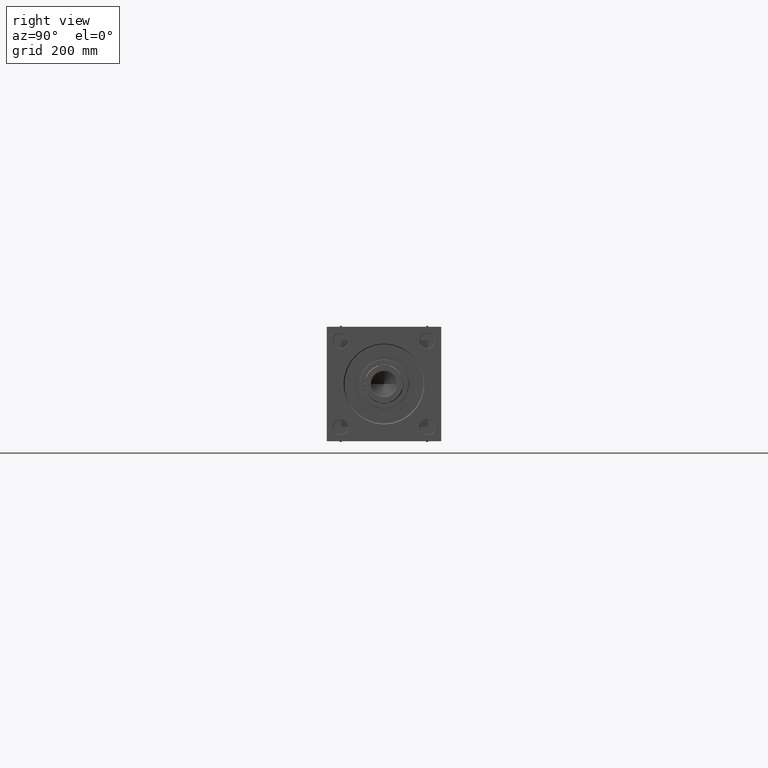
[diagram: clean part render]
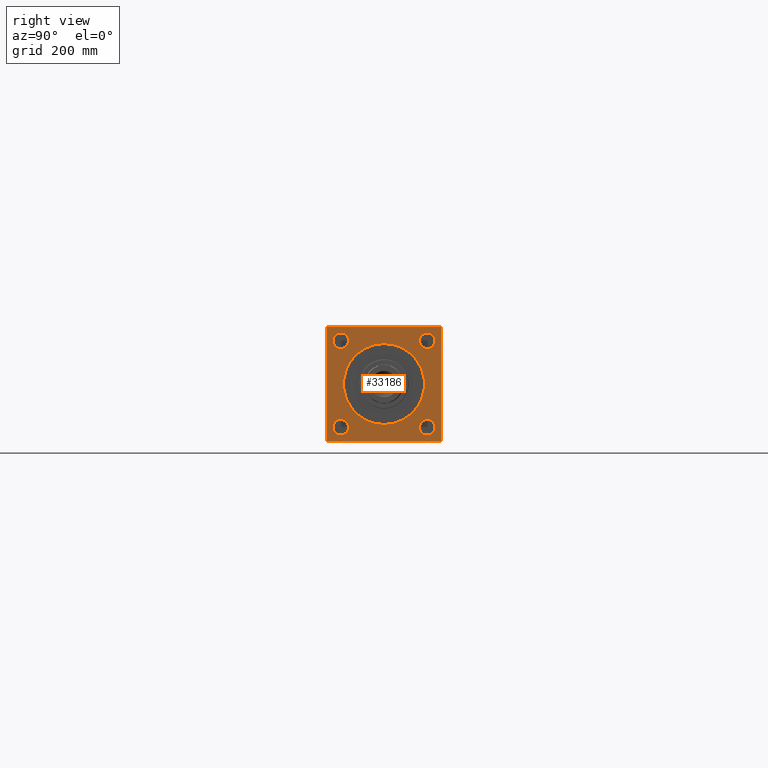
[diagram: same view with one face highlighted and labeled with its STEP entity id]
A machine part, right view. The second image highlights one B-rep face of the part: STEP entity #33186.
In plain terms, the highlighted planar face has unit normal (-1, 0, 0).
Its self-contained STEP definition (entity closure, byte-faithful):
#90 = EDGE_CURVE ( 'NONE', #42968, #31884, #39691, .T. ) ;
#387 = CIRCLE ( 'NONE', #45444, 13.99999999999990052 ) ;
#478 = CARTESIAN_POINT ( 'NONE',  ( 1212.000000000000000, 77.44999999999998863, -77.45000000000001705 ) ) ;
#896 = CARTESIAN_POINT ( 'NONE',  ( 1212.000000000000000, 102.5000000000000142, -102.5000000000000142 ) ) ;
#1019 = DIRECTION ( 'NONE',  ( -1.000000000000000000, 0.000000000000000000, 0.000000000000000000 ) ) ;
#1367 = EDGE_CURVE ( 'NONE', #21919, #31636, #20653, .T. ) ;
#2053 = LINE ( 'NONE', #22086, #44794 ) ;
#2267 = ORIENTED_EDGE ( 'NONE', *, *, #24091, .F. ) ;
#2291 = CARTESIAN_POINT ( 'NONE',  ( 1212.000000000000000, -77.45000000000005969, -63.45000000000010232 ) ) ;
#2478 = CARTESIAN_POINT ( 'NONE',  ( 1212.000000000000000, -102.4999999999999716, 102.4999999999999858 ) ) ;
#2962 = DIRECTION ( 'NONE',  ( -0.000000000000000000, -0.7071067811866358355, -0.7071067811864591990 ) ) ;
#3352 = AXIS2_PLACEMENT_3D ( 'NONE', #17491, #22364, #49532 ) ;
#3704 = PLANE ( 'NONE',  #5370 ) ;
#3819 = EDGE_CURVE ( 'NONE', #34414, #8251, #2053, .T. ) ;
#4295 = DIRECTION ( 'NONE',  ( -1.000000000000000000, 0.000000000000000000, 0.000000000000000000 ) ) ;
#4309 = CIRCLE ( 'NONE', #19080, 72.50000000000001421 ) ;
#4631 = CARTESIAN_POINT ( 'NONE',  ( 1212.000000000000000, -101.9999999999999005, 102.4999999999999858 ) ) ;
#4971 = CARTESIAN_POINT ( 'NONE',  ( 1212.000000000000000, 102.5000000000000142, 102.5000000000000142 ) ) ;
#4972 = CARTESIAN_POINT ( 'NONE',  ( 1212.000000000000000, -102.4999999999999716, 102.0000000000000284 ) ) ;
#5370 = AXIS2_PLACEMENT_3D ( 'NONE', #49894, #46564, #46047 ) ;
#5551 = VERTEX_POINT ( 'NONE', #28394 ) ;
#5745 = AXIS2_PLACEMENT_3D ( 'NONE', #8138, #4295, #39950 ) ;
#6541 = AXIS2_PLACEMENT_3D ( 'NONE', #17882, #29710, #33808 ) ;
#6571 = DIRECTION ( 'NONE',  ( 0.000000000000000000, -1.353930517835556727E-16, -1.000000000000000000 ) ) ;
#7108 = DIRECTION ( 'NONE',  ( 0.000000000000000000, 0.000000000000000000, 1.000000000000000000 ) ) ;
#7530 = ORIENTED_EDGE ( 'NONE', *, *, #3819, .T. ) ;
#8018 = CARTESIAN_POINT ( 'NONE',  ( 1212.000000000000000, 77.44999999999998863, -91.44999999999991758 ) ) ;
#8138 = CARTESIAN_POINT ( 'NONE',  ( 1212.000000000000000, -77.45000000000005969, -77.45000000000000284 ) ) ;
#8251 = VERTEX_POINT ( 'NONE', #43284 ) ;
#8512 = VERTEX_POINT ( 'NONE', #4972 ) ;
#8902 = ORIENTED_EDGE ( 'NONE', *, *, #22468, .T. ) ;
#10545 = AXIS2_PLACEMENT_3D ( 'NONE', #11916, #43214, #23484 ) ;
#10646 = DIRECTION ( 'NONE',  ( -1.000000000000000000, 0.000000000000000000, 0.000000000000000000 ) ) ;
#10802 = ORIENTED_EDGE ( 'NONE', *, *, #33922, .F. ) ;
#11183 = DIRECTION ( 'NONE',  ( 0.000000000000000000, 0.000000000000000000, 1.000000000000000000 ) ) ;
#11916 = CARTESIAN_POINT ( 'NONE',  ( 1212.000000000000000, -77.44999999999998863, 77.45000000000000284 ) ) ;
#12372 = EDGE_CURVE ( 'NONE', #20714, #19131, #32685, .T. ) ;
#12721 = CARTESIAN_POINT ( 'NONE',  ( 1212.000000000000000, -77.44999999999998863, 77.45000000000000284 ) ) ;
#13503 = EDGE_LOOP ( 'NONE', ( #35863, #22550 ) ) ;
#14031 = CIRCLE ( 'NONE', #3352, 13.99999999999990052 ) ;
#14088 = ORIENTED_EDGE ( 'NONE', *, *, #43619, .T. ) ;
#14510 = FACE_BOUND ( 'NONE', #16324, .T. ) ;
#14723 = AXIS2_PLACEMENT_3D ( 'NONE', #478, #28459, #16136 ) ;
#14744 = CARTESIAN_POINT ( 'NONE',  ( 1212.000000000000000, 8.878689293818310863E-15, 72.50000000000001421 ) ) ;
#14838 = CIRCLE ( 'NONE', #46818, 72.50000000000001421 ) ;
#15067 = CARTESIAN_POINT ( 'NONE',  ( 1212.000000000000000, 77.44999999999998863, 77.45000000000001705 ) ) ;
#15119 = CARTESIAN_POINT ( 'NONE',  ( 1212.000000000000000, 0.000000000000000000, -72.50000000000001421 ) ) ;
#15678 = CIRCLE ( 'NONE', #6541, 13.99999999999990052 ) ;
#15853 = EDGE_CURVE ( 'NONE', #31636, #8512, #46060, .T. ) ;
#15957 = VECTOR ( 'NONE', #20386, 1000.000000000000000 ) ;
#16108 = VERTEX_POINT ( 'NONE', #8018 ) ;
#16136 = DIRECTION ( 'NONE',  ( 0.000000000000000000, 0.000000000000000000, 1.000000000000000000 ) ) ;
#16324 = EDGE_LOOP ( 'NONE', ( #19519, #20217 ) ) ;
#16566 = DIRECTION ( 'NONE',  ( 0.000000000000000000, -1.000000000000000000, -1.353930517835556727E-16 ) ) ;
#16678 = DIRECTION ( 'NONE',  ( 0.000000000000000000, 0.000000000000000000, 1.000000000000000000 ) ) ;
#17491 = CARTESIAN_POINT ( 'NONE',  ( 1212.000000000000000, -77.45000000000005969, -77.45000000000000284 ) ) ;
#17882 = CARTESIAN_POINT ( 'NONE',  ( 1212.000000000000000, 77.44999999999998863, -77.45000000000001705 ) ) ;
#18043 = VERTEX_POINT ( 'NONE', #2291 ) ;
#18455 = EDGE_CURVE ( 'NONE', #27234, #16108, #15678, .T. ) ;
#18610 = FACE_BOUND ( 'NONE', #34659, .T. ) ;
#19080 = AXIS2_PLACEMENT_3D ( 'NONE', #41947, #10646, #22465 ) ;
#19131 = VERTEX_POINT ( 'NONE', #41869 ) ;
#19519 = ORIENTED_EDGE ( 'NONE', *, *, #47726, .T. ) ;
#19887 = LINE ( 'NONE', #4971, #15957 ) ;
#19925 = DIRECTION ( 'NONE',  ( 0.000000000000000000, 0.000000000000000000, 1.000000000000000000 ) ) ;
#19963 = CIRCLE ( 'NONE', #46177, 13.99999999999990052 ) ;
#20217 = ORIENTED_EDGE ( 'NONE', *, *, #24958, .T. ) ;
#20358 = CARTESIAN_POINT ( 'NONE',  ( 1212.000000000000000, -102.5000000000000000, -102.0000000000001990 ) ) ;
#20369 = DIRECTION ( 'NONE',  ( -1.000000000000000000, 0.000000000000000000, 0.000000000000000000 ) ) ;
#20386 = DIRECTION ( 'NONE',  ( 0.000000000000000000, 0.000000000000000000, -1.000000000000000000 ) ) ;
#20537 = CARTESIAN_POINT ( 'NONE',  ( 1212.000000000000000, 77.44999999999998863, 77.45000000000001705 ) ) ;
#20653 = LINE ( 'NONE', #37055, #30786 ) ;
#20714 = VERTEX_POINT ( 'NONE', #41515 ) ;
#21290 = ORIENTED_EDGE ( 'NONE', *, *, #30490, .T. ) ;
#21294 = CIRCLE ( 'NONE', #14723, 13.99999999999990052 ) ;
#21677 = ORIENTED_EDGE ( 'NONE', *, *, #15853, .T. ) ;
#21919 = VERTEX_POINT ( 'NONE', #27845 ) ;
#22053 = EDGE_LOOP ( 'NONE', ( #26655, #8902 ) ) ;
#22086 = CARTESIAN_POINT ( 'NONE',  ( 1212.000000000000000, 102.5000000000000142, -102.0000000000000568 ) ) ;
#22364 = DIRECTION ( 'NONE',  ( -1.000000000000000000, 0.000000000000000000, 0.000000000000000000 ) ) ;
#22465 = DIRECTION ( 'NONE',  ( 0.000000000000000000, 0.000000000000000000, 1.000000000000000000 ) ) ;
#22468 = EDGE_CURVE ( 'NONE', #18043, #5551, #14031, .T. ) ;
#22550 = ORIENTED_EDGE ( 'NONE', *, *, #34636, .T. ) ;
#22977 = FACE_BOUND ( 'NONE', #13503, .T. ) ;
#23484 = DIRECTION ( 'NONE',  ( 0.000000000000000000, 0.000000000000000000, 1.000000000000000000 ) ) ;
#24091 = EDGE_CURVE ( 'NONE', #34414, #31884, #36060, .T. ) ;
#24398 = LINE ( 'NONE', #2478, #24987 ) ;
#24600 = CARTESIAN_POINT ( 'NONE',  ( 1212.000000000000000, -102.0000000000001421, -102.5000000000000284 ) ) ;
#24958 = EDGE_CURVE ( 'NONE', #32455, #39503, #4309, .T. ) ;
#24987 = VECTOR ( 'NONE', #6571, 1000.000000000000000 ) ;
#25448 = CARTESIAN_POINT ( 'NONE',  ( 1212.000000000000000, 77.44999999999998863, 63.45000000000011653 ) ) ;
#25977 = CARTESIAN_POINT ( 'NONE',  ( 1212.000000000000000, 101.9999999999999574, -102.5000000000000142 ) ) ;
#26655 = ORIENTED_EDGE ( 'NONE', *, *, #46325, .T. ) ;
#26707 = ORIENTED_EDGE ( 'NONE', *, *, #45901, .T. ) ;
#27111 = CARTESIAN_POINT ( 'NONE',  ( 1212.000000000000000, 0.000000000000000000, 0.000000000000000000 ) ) ;
#27234 = VERTEX_POINT ( 'NONE', #40737 ) ;
#27373 = EDGE_CURVE ( 'NONE', #19131, #20714, #19963, .T. ) ;
#27845 = CARTESIAN_POINT ( 'NONE',  ( 1212.000000000000000, 102.0000000000000568, 102.5000000000000142 ) ) ;
#28394 = CARTESIAN_POINT ( 'NONE',  ( 1212.000000000000000, -77.45000000000005969, -91.44999999999990337 ) ) ;
#28459 = DIRECTION ( 'NONE',  ( -1.000000000000000000, 0.000000000000000000, 0.000000000000000000 ) ) ;
#28643 = DIRECTION ( 'NONE',  ( -1.000000000000000000, 0.000000000000000000, 0.000000000000000000 ) ) ;
#29115 = LINE ( 'NONE', #33214, #40184 ) ;
#29367 = DIRECTION ( 'NONE',  ( 0.000000000000000000, -0.7071067811864690800, 0.7071067811866260655 ) ) ;
#29620 = CARTESIAN_POINT ( 'NONE',  ( 1212.000000000000000, 102.5000000000000142, 101.9999999999999574 ) ) ;
#29710 = DIRECTION ( 'NONE',  ( -1.000000000000000000, 0.000000000000000000, 0.000000000000000000 ) ) ;
#30174 = CARTESIAN_POINT ( 'NONE',  ( 1212.000000000000000, 77.44999999999998863, 91.44999999999991758 ) ) ;
#30490 = EDGE_CURVE ( 'NONE', #8512, #42968, #24398, .T. ) ;
#30786 = VECTOR ( 'NONE', #48096, 1000.000000000000000 ) ;
#30933 = FACE_OUTER_BOUND ( 'NONE', #33798, .T. ) ;
#31216 = DIRECTION ( 'NONE',  ( -1.000000000000000000, 0.000000000000000000, 0.000000000000000000 ) ) ;
#31636 = VERTEX_POINT ( 'NONE', #4631 ) ;
#31768 = CARTESIAN_POINT ( 'NONE',  ( 1212.000000000000000, -102.0000000000001421, -102.5000000000000284 ) ) ;
#31884 = VERTEX_POINT ( 'NONE', #24600 ) ;
#32455 = VERTEX_POINT ( 'NONE', #14744 ) ;
#32596 = ORIENTED_EDGE ( 'NONE', *, *, #12372, .T. ) ;
#32685 = CIRCLE ( 'NONE', #10545, 13.99999999999990052 ) ;
#33186 = ADVANCED_FACE ( 'NONE', ( #22977, #38602, #34522, #18610, #14510, #30933 ), #3704, .F. ) ;
#33197 = VERTEX_POINT ( 'NONE', #30174 ) ;
#33214 = CARTESIAN_POINT ( 'NONE',  ( 1212.000000000000000, 102.0000000000000568, 102.5000000000000142 ) ) ;
#33379 = DIRECTION ( 'NONE',  ( -0.000000000000000000, 0.7071067811866260655, 0.7071067811864690800 ) ) ;
#33798 = EDGE_LOOP ( 'NONE', ( #21290, #49451, #2267, #7530, #10802, #26707, #49047, #21677 ) ) ;
#33808 = DIRECTION ( 'NONE',  ( 0.000000000000000000, 0.000000000000000000, 1.000000000000000000 ) ) ;
#33922 = EDGE_CURVE ( 'NONE', #38951, #8251, #19887, .T. ) ;
#34414 = VERTEX_POINT ( 'NONE', #25977 ) ;
#34522 = FACE_BOUND ( 'NONE', #22053, .T. ) ;
#34636 = EDGE_CURVE ( 'NONE', #33197, #38482, #387, .T. ) ;
#34659 = EDGE_LOOP ( 'NONE', ( #14088, #37101 ) ) ;
#35863 = ORIENTED_EDGE ( 'NONE', *, *, #43898, .T. ) ;
#36060 = LINE ( 'NONE', #896, #40331 ) ;
#36781 = ORIENTED_EDGE ( 'NONE', *, *, #27373, .T. ) ;
#37055 = CARTESIAN_POINT ( 'NONE',  ( 1212.000000000000000, 102.5000000000000142, 102.5000000000000142 ) ) ;
#37101 = ORIENTED_EDGE ( 'NONE', *, *, #18455, .T. ) ;
#37279 = VECTOR ( 'NONE', #46380, 1000.000000000000000 ) ;
#38482 = VERTEX_POINT ( 'NONE', #25448 ) ;
#38602 = FACE_BOUND ( 'NONE', #44045, .T. ) ;
#38951 = VERTEX_POINT ( 'NONE', #29620 ) ;
#39503 = VERTEX_POINT ( 'NONE', #15119 ) ;
#39691 = LINE ( 'NONE', #31768, #37279 ) ;
#39950 = DIRECTION ( 'NONE',  ( 0.000000000000000000, 0.000000000000000000, 1.000000000000000000 ) ) ;
#40184 = VECTOR ( 'NONE', #29367, 1000.000000000000114 ) ;
#40331 = VECTOR ( 'NONE', #16566, 1000.000000000000000 ) ;
#40737 = CARTESIAN_POINT ( 'NONE',  ( 1212.000000000000000, 77.44999999999998863, -63.45000000000011653 ) ) ;
#41515 = CARTESIAN_POINT ( 'NONE',  ( 1212.000000000000000, -77.44999999999998863, 63.45000000000010232 ) ) ;
#41828 = CIRCLE ( 'NONE', #5745, 13.99999999999990052 ) ;
#41869 = CARTESIAN_POINT ( 'NONE',  ( 1212.000000000000000, -77.44999999999998863, 91.44999999999990337 ) ) ;
#41947 = CARTESIAN_POINT ( 'NONE',  ( 1212.000000000000000, 0.000000000000000000, 0.000000000000000000 ) ) ;
#42968 = VERTEX_POINT ( 'NONE', #20358 ) ;
#43214 = DIRECTION ( 'NONE',  ( -1.000000000000000000, 0.000000000000000000, 0.000000000000000000 ) ) ;
#43284 = CARTESIAN_POINT ( 'NONE',  ( 1212.000000000000000, 102.5000000000000142, -102.0000000000000568 ) ) ;
#43619 = EDGE_CURVE ( 'NONE', #16108, #27234, #21294, .T. ) ;
#43898 = EDGE_CURVE ( 'NONE', #38482, #33197, #45011, .T. ) ;
#44045 = EDGE_LOOP ( 'NONE', ( #32596, #36781 ) ) ;
#44198 = AXIS2_PLACEMENT_3D ( 'NONE', #15067, #20369, #7108 ) ;
#44794 = VECTOR ( 'NONE', #33379, 1000.000000000000114 ) ;
#45011 = CIRCLE ( 'NONE', #44198, 13.99999999999990052 ) ;
#45444 = AXIS2_PLACEMENT_3D ( 'NONE', #20537, #1019, #16678 ) ;
#45812 = CARTESIAN_POINT ( 'NONE',  ( 1212.000000000000000, -102.4999999999999716, 102.0000000000000284 ) ) ;
#45901 = EDGE_CURVE ( 'NONE', #38951, #21919, #29115, .T. ) ;
#46047 = DIRECTION ( 'NONE',  ( 0.000000000000000000, 0.000000000000000000, 1.000000000000000000 ) ) ;
#46060 = LINE ( 'NONE', #45812, #48347 ) ;
#46177 = AXIS2_PLACEMENT_3D ( 'NONE', #12721, #28643, #19925 ) ;
#46325 = EDGE_CURVE ( 'NONE', #5551, #18043, #41828, .T. ) ;
#46380 = DIRECTION ( 'NONE',  ( 0.000000000000000000, 0.7071067811865573427, -0.7071067811865378028 ) ) ;
#46564 = DIRECTION ( 'NONE',  ( -1.000000000000000000, 0.000000000000000000, 0.000000000000000000 ) ) ;
#46818 = AXIS2_PLACEMENT_3D ( 'NONE', #27111, #31216, #11183 ) ;
#47726 = EDGE_CURVE ( 'NONE', #39503, #32455, #14838, .T. ) ;
#48096 = DIRECTION ( 'NONE',  ( 0.000000000000000000, -1.000000000000000000, -1.353930517835556973E-16 ) ) ;
#48347 = VECTOR ( 'NONE', #2962, 1000.000000000000000 ) ;
#49047 = ORIENTED_EDGE ( 'NONE', *, *, #1367, .T. ) ;
#49451 = ORIENTED_EDGE ( 'NONE', *, *, #90, .T. ) ;
#49532 = DIRECTION ( 'NONE',  ( 0.000000000000000000, 0.000000000000000000, 1.000000000000000000 ) ) ;
#49894 = CARTESIAN_POINT ( 'NONE',  ( 1212.000000000000000, 0.000000000000000000, 0.000000000000000000 ) ) ;